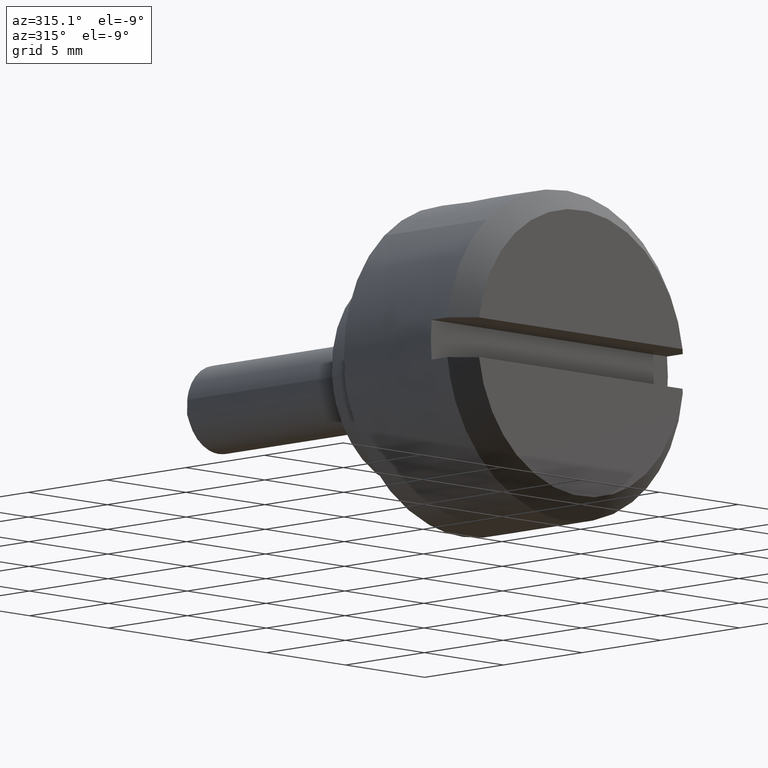
[diagram: clean part render]
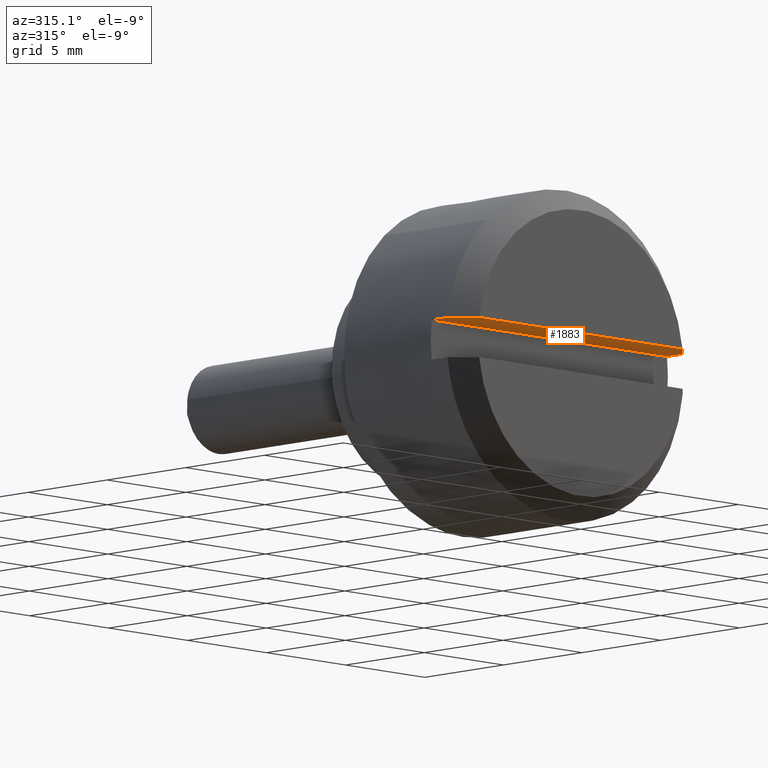
[diagram: same view with one face highlighted and labeled with its STEP entity id]
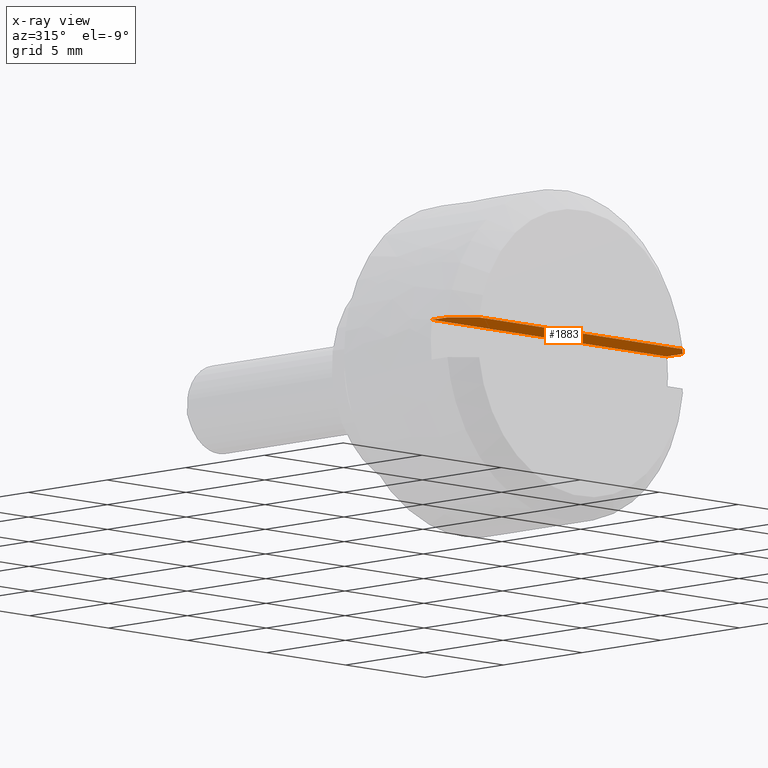
[diagram: x-ray of the same camera — body ghosted, the highlighted face saturated]
A machine part, auxiliary view. The second image highlights one B-rep face of the part: STEP entity #1883.
The next image is the same camera in x-ray: the body ghosted, the highlighted face saturated — about 0% of this face is hidden behind the body in this view.
In plain terms, the highlighted face is a freeform B-spline surface patch.
Its self-contained STEP definition (entity closure, byte-faithful):
#1619=CARTESIAN_POINT('',(-8.0,7.445804187594510,0.900000000000063));
#1620=VERTEX_POINT('',#1619);
#1634=CARTESIAN_POINT('',(-9.0,7.445804187594510,0.900000000000013));
#1635=VERTEX_POINT('',#1634);
#1636=CARTESIAN_POINT('',(-8.0,7.445804187594510,0.900000000000063));
#1637=CARTESIAN_POINT('',(-9.0,7.445804187594510,0.900000000000013));
#1638=QUASI_UNIFORM_CURVE('',1,(#1636,#1637),.UNSPECIFIED.,.F.,.U.);
#1639=EDGE_CURVE('',#1620,#1635,#1638,.T.);
#1714=CARTESIAN_POINT('',(-9.0,-7.445804187594519,0.900000000000013));
#1715=VERTEX_POINT('',#1714);
#1731=CARTESIAN_POINT('',(-8.0,-7.445804187594510,0.900000000000063));
#1732=VERTEX_POINT('',#1731);
#1733=CARTESIAN_POINT('',(-9.0,-7.445804187594519,0.900000000000013));
#1734=CARTESIAN_POINT('',(-8.0,-7.445804187594510,0.900000000000063));
#1735=QUASI_UNIFORM_CURVE('',1,(#1733,#1734),.UNSPECIFIED.,.F.,.U.);
#1736=EDGE_CURVE('',#1715,#1732,#1735,.T.);
#1839=CARTESIAN_POINT('',(-8.0,7.445804187594510,0.900000000000063));
#1840=CARTESIAN_POINT('',(-8.0,-7.445804187594510,0.900000000000063));
#1841=QUASI_UNIFORM_CURVE('',1,(#1839,#1840),.UNSPECIFIED.,.F.,.U.);
#1842=EDGE_CURVE('',#1620,#1732,#1841,.T.);
#1850=CARTESIAN_POINT('',(-7.900100003876387,-8.189639997072387,0.900000000000013));
#1851=CARTESIAN_POINT('',(-10.099900049767790,-8.189639997072387,0.900000000000013));
#1852=CARTESIAN_POINT('',(-7.900100003876387,8.189640396496438,0.900000000000013));
#1853=CARTESIAN_POINT('',(-10.099900049767790,8.189640396496438,0.900000000000013));
#1854=B_SPLINE_SURFACE_WITH_KNOTS('',1,1,((#1850,#1852),(#1851,#1853)),.UNSPECIFIED.,.F.,.F.,.U.,(2,2),(2,2),(0.0,2.199800045891406),(0.0,16.379280393568830),.UNSPECIFIED.);
#1855=ORIENTED_EDGE('',*,*,#1842,.T.);
#1856=ORIENTED_EDGE('',*,*,#1736,.F.);
#1857=CARTESIAN_POINT('',(-10.0,-6.437390775772450,0.900000000000013));
#1858=VERTEX_POINT('',#1857);
#1859=CARTESIAN_POINT('',(-10.0,-6.437390775772450,0.900000000000013));
#1860=CARTESIAN_POINT('',(-9.666890425772756,-6.773750161947057,0.900000000000013));
#1861=CARTESIAN_POINT('',(-9.333519248877920,-7.109850490492694,0.900000000000013));
#1862=CARTESIAN_POINT('',(-9.0,-7.445804187594519,0.900000000000013));
#1863=B_SPLINE_CURVE_WITH_KNOTS('',3,(#1859,#1860,#1861,#1862),.UNSPECIFIED.,.F.,.U.,(4,4),(0.929162089459682,1.0),.UNSPECIFIED.);
#1864=EDGE_CURVE('',#1858,#1715,#1863,.T.);
#1865=ORIENTED_EDGE('',*,*,#1864,.F.);
#1866=CARTESIAN_POINT('',(-10.0,6.437390775772450,0.900000000000013));
#1867=VERTEX_POINT('',#1866);
#1868=CARTESIAN_POINT('',(-10.0,6.437390775772450,0.900000000000013));
#1869=CARTESIAN_POINT('',(-10.0,-6.437390775772450,0.900000000000013));
#1870=QUASI_UNIFORM_CURVE('',1,(#1868,#1869),.UNSPECIFIED.,.F.,.U.);
#1871=EDGE_CURVE('',#1867,#1858,#1870,.T.);
#1872=ORIENTED_EDGE('',*,*,#1871,.F.);
#1873=CARTESIAN_POINT('',(-9.0,7.445804187594510,0.900000000000013));
#1874=CARTESIAN_POINT('',(-9.333519141448813,7.109850583502703,0.900000000000013));
#1875=CARTESIAN_POINT('',(-9.666890308170462,6.773750285482533,0.900000000000013));
#1876=CARTESIAN_POINT('',(-10.0,6.437390775772450,0.900000000000013));
#1877=B_SPLINE_CURVE_WITH_KNOTS('',3,(#1873,#1874,#1875,#1876),.UNSPECIFIED.,.F.,.U.,(4,4),(0.0,0.070808166643104),.UNSPECIFIED.);
#1878=EDGE_CURVE('',#1635,#1867,#1877,.T.);
#1879=ORIENTED_EDGE('',*,*,#1878,.F.);
#1880=ORIENTED_EDGE('',*,*,#1639,.F.);
#1881=EDGE_LOOP('',(#1855,#1856,#1865,#1872,#1879,#1880));
#1882=FACE_OUTER_BOUND('',#1881,.T.);
#1883=ADVANCED_FACE('',(#1882),#1854,.T.);